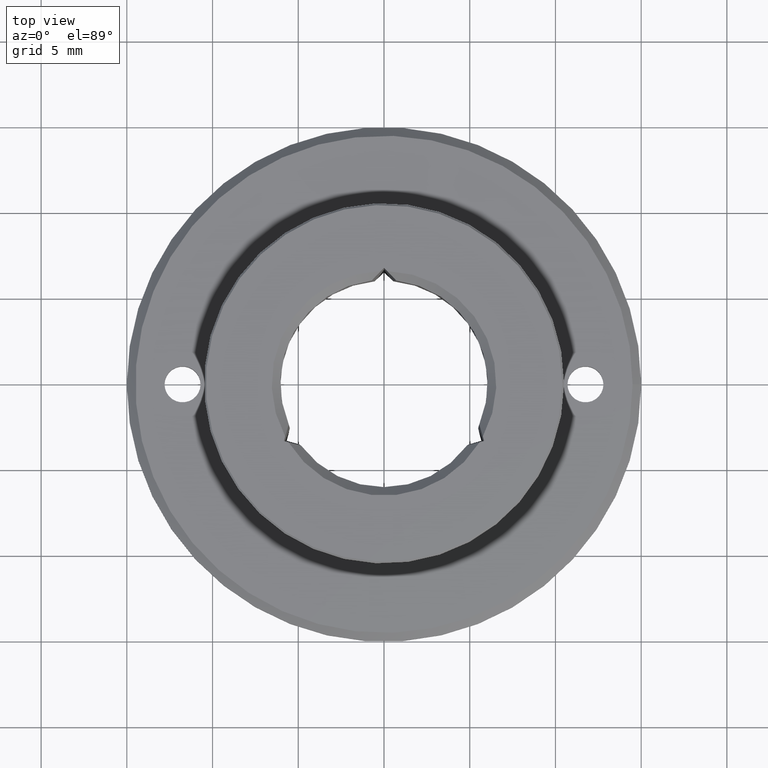
[diagram: clean part render]
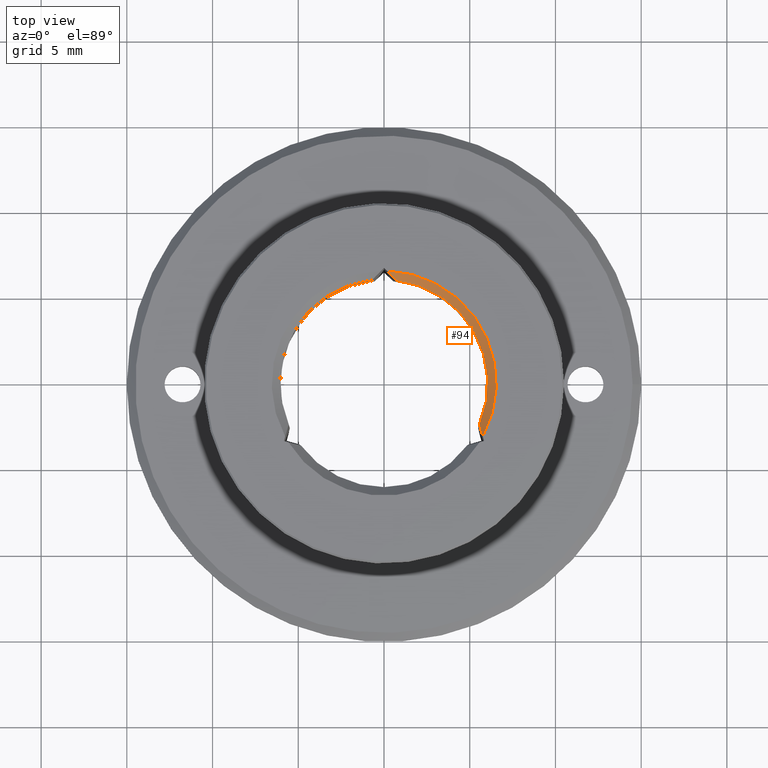
[diagram: same view with one face highlighted and labeled with its STEP entity id]
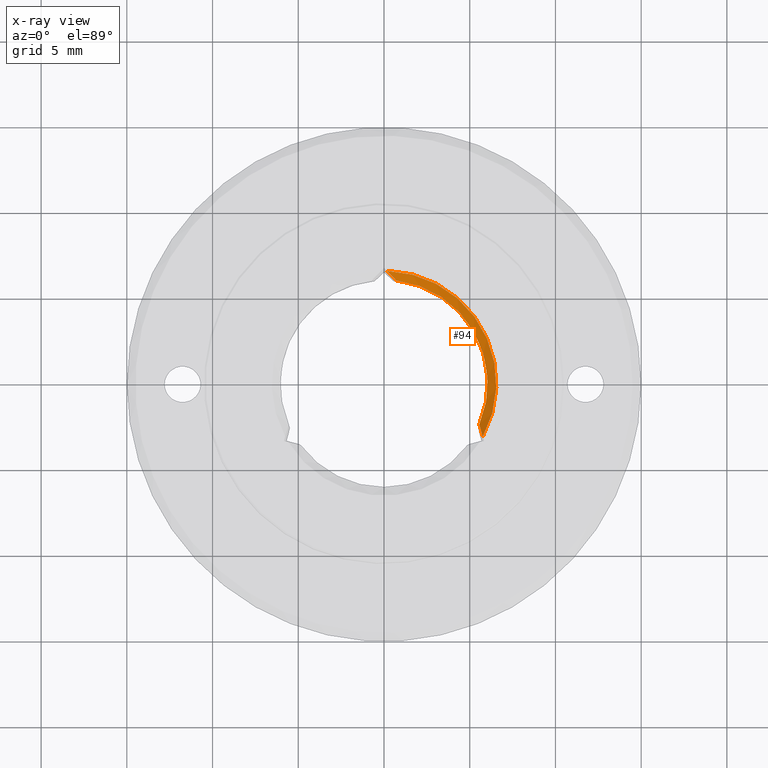
[diagram: x-ray of the same camera — body ghosted, the highlighted face saturated]
A machine part, top view. The second image highlights one B-rep face of the part: STEP entity #94.
The next image is the same camera in x-ray: the body ghosted, the highlighted face saturated — about 0% of this face is hidden behind the body in this view.
In plain terms, the highlighted conical surface has half-angle 45 deg.
Its self-contained STEP definition (entity closure, byte-faithful):
#20 = ORIENTED_EDGE ( 'NONE', *, *, #718, .T. ) ;
#22 = CARTESIAN_POINT ( 'NONE',  ( 0.1854387021565571947, 6.547374472851121396, 2.500000000000001776 ) ) ;
#33 = DIRECTION ( 'NONE',  ( -0.0000000000000000000, -0.0000000000000000000, 1.000000000000000000 ) ) ;
#62 = CONICAL_SURFACE ( 'NONE', #215, 6.550000000000000711, 0.7853981633974482790 ) ;
#63 = CARTESIAN_POINT ( 'NONE',  ( 0.7069815226384784657, 6.008550334868450804, 2.000000000000015099 ) ) ;
#94 = ADVANCED_FACE ( 'NONE', ( #449 ), #62, .F. ) ;
#103 = DIRECTION ( 'NONE',  ( -0.0000000000000000000, -0.0000000000000000000, 1.000000000000000000 ) ) ;
#148 = CARTESIAN_POINT ( 'NONE',  ( 5.626589387077160609, -2.636388150905939032, 2.160495414665191127 ) ) ;
#167 = VERTEX_POINT ( 'NONE', #344 ) ;
#215 = AXIS2_PLACEMENT_3D ( 'NONE', #384, #33, #727 ) ;
#257 = EDGE_CURVE ( 'NONE', #346, #399, #789, .T. ) ;
#304 = CARTESIAN_POINT ( 'NONE',  ( 0.0000000000000000000, 0.0000000000000000000, 2.000000000000000888 ) ) ;
#344 = CARTESIAN_POINT ( 'NONE',  ( 5.762911972657124515, -3.113092609513114617, 2.500000000000001332 ) ) ;
#346 = VERTEX_POINT ( 'NONE', #22 ) ;
#351 = CARTESIAN_POINT ( 'NONE',  ( 5.762911972657124515, -3.113092609513114617, 2.500000000000001332 ) ) ;
#373 = EDGE_LOOP ( 'NONE', ( #20, #792, #836, #421 ) ) ;
#378 = CIRCLE ( 'NONE', #816, 6.550000000000000711 ) ;
#384 = CARTESIAN_POINT ( 'NONE',  ( 0.0000000000000000000, 0.0000000000000000000, 2.500000000000001332 ) ) ;
#399 = VERTEX_POINT ( 'NONE', #488 ) ;
#407 = B_SPLINE_CURVE_WITH_KNOTS ( 'NONE', 3,
 ( #827, #148, #419, #351 ),
 .UNSPECIFIED., .F., .F.,
 ( 4, 4 ),
 ( 3.743883699493275469E-07, 0.0009016725439581060528 ),
 .UNSPECIFIED. ) ;
#415 = CARTESIAN_POINT ( 'NONE',  ( 0.5301155806177045848, 6.190963421325712090, 2.160495414665194236 ) ) ;
#419 = CARTESIAN_POINT ( 'NONE',  ( 5.695113200979049495, -2.876322932736155025, 2.327816139852491695 ) ) ;
#421 = ORIENTED_EDGE ( 'NONE', *, *, #456, .T. ) ;
#449 = FACE_OUTER_BOUND ( 'NONE', #373, .T. ) ;
#456 = EDGE_CURVE ( 'NONE', #643, #167, #407, .T. ) ;
#474 = CARTESIAN_POINT ( 'NONE',  ( 0.1854387021565571947, 6.547374472851121396, 2.500000000000001776 ) ) ;
#488 = CARTESIAN_POINT ( 'NONE',  ( 0.7069815226384784657, 6.008550334868450804, 2.000000000000015099 ) ) ;
#501 = EDGE_CURVE ( 'NONE', #643, #399, #776, .T. ) ;
#504 = DIRECTION ( 'NONE',  ( 1.000000000000000000, 0.0000000000000000000, 0.0000000000000000000 ) ) ;
#516 = DIRECTION ( 'NONE',  ( 1.000000000000000000, 0.0000000000000000000, 0.0000000000000000000 ) ) ;
#596 = CARTESIAN_POINT ( 'NONE',  ( 5.557047991232830775, -2.392011208823061619, 2.000000000000001332 ) ) ;
#612 = AXIS2_PLACEMENT_3D ( 'NONE', #304, #103, #504 ) ;
#643 = VERTEX_POINT ( 'NONE', #596 ) ;
#673 = CARTESIAN_POINT ( 'NONE',  ( 0.0000000000000000000, 0.0000000000000000000, 2.500000000000001332 ) ) ;
#674 = CARTESIAN_POINT ( 'NONE',  ( 0.3565878712522007610, 6.370274175844049758, 2.327816139852492139 ) ) ;
#718 = EDGE_CURVE ( 'NONE', #167, #346, #378, .T. ) ;
#727 = DIRECTION ( 'NONE',  ( 1.000000000000000000, 0.0000000000000000000, 0.0000000000000000000 ) ) ;
#734 = DIRECTION ( 'NONE',  ( -0.0000000000000000000, -0.0000000000000000000, 1.000000000000000000 ) ) ;
#776 = CIRCLE ( 'NONE', #612, 6.049999999999999822 ) ;
#789 = B_SPLINE_CURVE_WITH_KNOTS ( 'NONE', 3,
 ( #474, #674, #415, #63 ),
 .UNSPECIFIED., .F., .F.,
 ( 4, 4 ),
 ( 3.489634720360096116E-07, 0.0009016471190601932318 ),
 .UNSPECIFIED. ) ;
#792 = ORIENTED_EDGE ( 'NONE', *, *, #257, .T. ) ;
#816 = AXIS2_PLACEMENT_3D ( 'NONE', #673, #734, #516 ) ;
#827 = CARTESIAN_POINT ( 'NONE',  ( 5.557047991232830775, -2.392011208823061619, 2.000000000000001332 ) ) ;
#836 = ORIENTED_EDGE ( 'NONE', *, *, #501, .F. ) ;